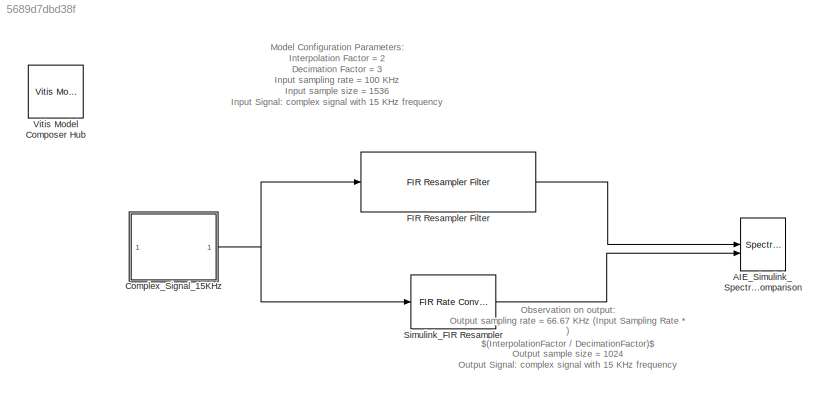
MODEL slx_5689d7dbd38f
KIND model
CONFIG AbsTol = auto
CONFIG EnableMultiTasking = off
CONFIG FixedStep = auto
CONFIG MaxStep = auto
CONFIG MinStep = auto
CONFIG RelTol = 1e-3
CONFIG SampleTimeConstraint = Unconstrained
CONFIG SolverName = VariableStepAuto
CONFIG StartTime = 0.0
CONFIG StopTime = 0.5
BLOCK [SpectrumAnalyzer] AIE_Simulink_Spectrum_Comparison
  AllowFFTLengthLessThanSamplesPerUpdate = on
  AveragingMethod = Exponential
  ChannelNames = [""]
  DefaultConfigurationName = spbscopes.SpectrumAnalyzerBlockCfg
  NumInputPorts = 2
  ScopeSpecificationString = spbscopes.SpectrumAnalyzerBlockCfg('CurrentConfiguration', extmgr.ConfigurationSet(extmgr.Configuration('Core','General UI',true,'FigureColor',[0.16        0.16        0.16]),extmgr.Configuration('Visuals','Spectrum',true,'Title','','YLabel','','MinYLim','-37.962','MaxYLim','34.8266','Legend',true,'AxesProperties',struct('XGrid',{'on','on'},'YGrid',{'on','on'},'ZGrid',{'on','on'},'Color',{[0 0 0],...<+2441ch>
  ShowLegend = on
  WasSavedAsWebScope = on
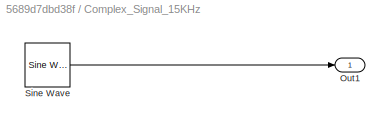
BLOCK [SubSystem] Complex_Signal_15KHz
BLOCK [Outport] Complex_Signal_15KHz/Out1
BLOCK [Reference] Complex_Signal_15KHz/Sine Wave  REF=dspsrcs4/Sine Wave
  SourceBlock = dspsrcs4/Sine Wave
  SourceType = Sine Wave
BLOCK [Reference] FIR Resampler Filter  REF=aieDSP/FIR Resampler Filter
  SourceBlock = aieDSP/FIR Resampler Filter
  SourceType = FIR Resampler Filter
BLOCK [Reference] Simulink_FIR Resampler  REF=dspmlti4/FIR Rate
Conversion
  SourceBlock = dspmlti4/FIR Rate\nConversion
  SourceType = FIR Rate Conversion
BLOCK [Reference] Vitis Model Composer Hub  REF=vmcUtilities/Vitis Model Composer Hub
  SourceBlock = vmcUtilities/Vitis Model Composer Hub
  SourceType = VMC Hub
  Tag = genX
  UserDataPersistent = on
ANNOTATION (root): Model Configuration Parameters: Interpolation Factor = 2 Decimation Factor = 3 Input sampling rate = 100 KHz Input sample size = 1536 Input Signal: complex signal with 15 KHz frequency
ANNOTATION (root): Observation on output: Output sampling rate = 66.67 KHz (Input Sampling Rate * $(InterpolationFactor / DecimationFactor)$ ) Output sample size = 1024 Output Signal: complex signal with 15 KHz frequency
LINE Complex_Signal_15KHz/Sine Wave:1 -> Complex_Signal_15KHz/Out1:1
NET Complex_Signal_15KHz:1 -> FIR Resampler Filter:1, Simulink_FIR Resampler:1
LINE FIR Resampler Filter:1 -> AIE_Simulink_Spectrum_Comparison:1
LINE Simulink_FIR Resampler:1 -> AIE_Simulink_Spectrum_Comparison:2
note: NET lines group one-source signal fan-out (src -> all destinations, sorted); 1:1 wires keep LINE
